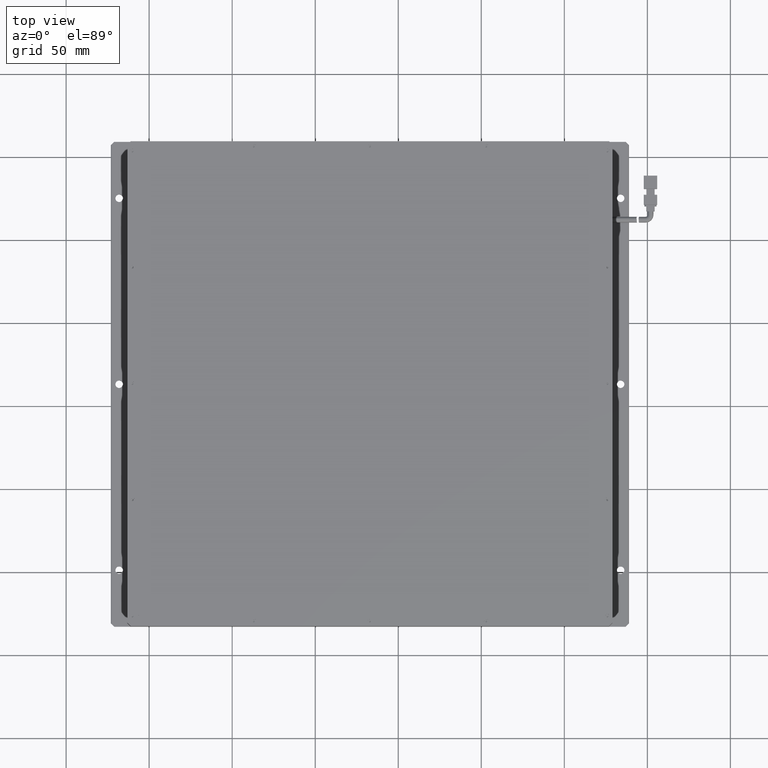
[diagram: clean part render]
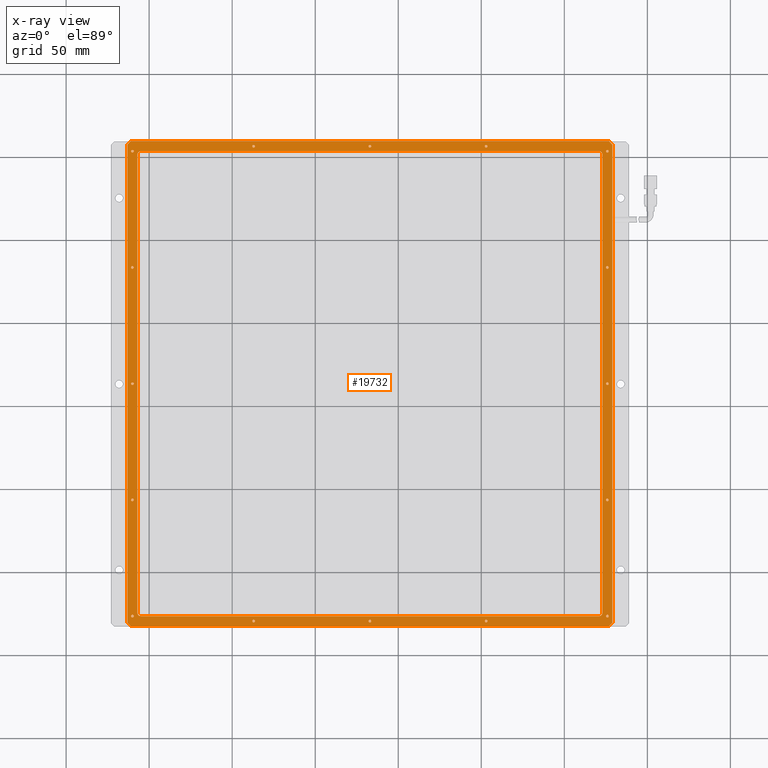
[diagram: x-ray — body ghosted, one internal face saturated and labeled with its STEP entity id]
A machine part, top view, then the same camera in x-ray: the body is ghosted and one INTERNAL B-rep face — a face not visible from any outside direction — is saturated and labeled: STEP entity #19732.
In plain terms, the highlighted planar face has unit normal (0, 0, 1).
Its self-contained STEP definition (entity closure, byte-faithful):
#38 = CIRCLE ( 'NONE', #19101, 0.8000000000000229200 ) ;
#142 = VERTEX_POINT ( 'NONE', #3890 ) ;
#190 = CARTESIAN_POINT ( 'NONE',  ( -110.8806771263418400, 83.26980456922672100, 8.499999999971805700 ) ) ;
#257 = CIRCLE ( 'NONE', #23396, 2.000000000000001800 ) ;
#259 = LINE ( 'NONE', #16151, #10939 ) ;
#296 = CARTESIAN_POINT ( 'NONE',  ( -113.0806771263418400, -130.7301954307733100, 8.499999999971805700 ) ) ;
#461 = CARTESIAN_POINT ( 'NONE',  ( 103.7193228736582300, 156.2698045692266600, 8.499999999971805700 ) ) ;
#508 = VERTEX_POINT ( 'NONE', #21748 ) ;
#614 = EDGE_CURVE ( 'NONE', #21358, #20732, #9364, .T. ) ;
#615 = LINE ( 'NONE', #1643, #16380 ) ;
#624 = CIRCLE ( 'NONE', #12786, 0.8000000000000229200 ) ;
#772 = VECTOR ( 'NONE', #18572, 999.9999999999998900 ) ;
#787 = EDGE_CURVE ( 'NONE', #20691, #19049, #4338, .T. ) ;
#879 = EDGE_CURVE ( 'NONE', #2624, #3625, #26768, .T. ) ;
#892 = CIRCLE ( 'NONE', #12843, 0.7999999999999951600 ) ;
#947 = DIRECTION ( 'NONE',  ( 0.0000000000000000000, 0.0000000000000000000, -1.000000000000000000 ) ) ;
#989 = CARTESIAN_POINT ( 'NONE',  ( 176.9193228736581900, 159.2698045692267500, 8.499999999971805700 ) ) ;
#1025 = DIRECTION ( 'NONE',  ( 0.0000000000000000000, 0.0000000000000000000, 1.000000000000000000 ) ) ;
#1059 = CARTESIAN_POINT ( 'NONE',  ( -109.2806771263418400, -56.73019543077334200, 8.499999999971805700 ) ) ;
#1090 = DIRECTION ( 'NONE',  ( 1.000000000000000000, 0.0000000000000000000, 0.0000000000000000000 ) ) ;
#1115 = CARTESIAN_POINT ( 'NONE',  ( 32.11932287365817700, 156.2698045692266600, 8.499999999971805700 ) ) ;
#1146 = EDGE_CURVE ( 'NONE', #22262, #21589, #11834, .T. ) ;
#1156 = DIRECTION ( 'NONE',  ( 0.0000000000000000000, 0.0000000000000000000, -1.000000000000000000 ) ) ;
#1252 = CARTESIAN_POINT ( 'NONE',  ( 32.91932287365817400, -129.7301954307733600, 8.499999999971805700 ) ) ;
#1259 = FACE_BOUND ( 'NONE', #19991, .T. ) ;
#1375 = ORIENTED_EDGE ( 'NONE', *, *, #7143, .T. ) ;
#1405 = CARTESIAN_POINT ( 'NONE',  ( 178.9193228736582500, -130.7301954307732200, 8.499999999971805700 ) ) ;
#1496 = CARTESIAN_POINT ( 'NONE',  ( 33.71932287365817200, -129.7301954307733600, 8.499999999971805700 ) ) ;
#1515 = EDGE_LOOP ( 'NONE', ( #5699, #10778 ) ) ;
#1524 = DIRECTION ( 'NONE',  ( 1.000000000000000000, 0.0000000000000000000, 0.0000000000000000000 ) ) ;
#1572 = ORIENTED_EDGE ( 'NONE', *, *, #13471, .T. ) ;
#1609 = DIRECTION ( 'NONE',  ( 1.000000000000000000, 0.0000000000000000000, -0.0000000000000000000 ) ) ;
#1643 = CARTESIAN_POINT ( 'NONE',  ( -113.0806771263418400, 153.2698045692266100, 8.499999999971805700 ) ) ;
#1668 = CIRCLE ( 'NONE', #5018, 0.7999999999999951600 ) ;
#1762 = DIRECTION ( 'NONE',  ( 0.0000000000000000000, 0.0000000000000000000, -1.000000000000000000 ) ) ;
#1777 = DIRECTION ( 'NONE',  ( 0.0000000000000000000, 0.0000000000000000000, -1.000000000000000000 ) ) ;
#1840 = VERTEX_POINT ( 'NONE', #18078 ) ;
#1885 = FACE_BOUND ( 'NONE', #9680, .T. ) ;
#2018 = EDGE_CURVE ( 'NONE', #15684, #16032, #21121, .T. ) ;
#2071 = CARTESIAN_POINT ( 'NONE',  ( 32.91932287365817400, 156.2698045692266600, 8.499999999971805700 ) ) ;
#2175 = CARTESIAN_POINT ( 'NONE',  ( -113.0806771263418400, 157.2698045692267200, 8.499999999971805700 ) ) ;
#2193 = VECTOR ( 'NONE', #2307, 1000.000000000000000 ) ;
#2228 = CIRCLE ( 'NONE', #23021, 2.000000000000001800 ) ;
#2307 = DIRECTION ( 'NONE',  ( 1.000000000000000000, 0.0000000000000000000, -0.0000000000000000000 ) ) ;
#2351 = ORIENTED_EDGE ( 'NONE', *, *, #9769, .T. ) ;
#2427 = AXIS2_PLACEMENT_3D ( 'NONE', #5192, #20190, #7348 ) ;
#2430 = ORIENTED_EDGE ( 'NONE', *, *, #2716, .T. ) ;
#2447 = CARTESIAN_POINT ( 'NONE',  ( -37.08067712634184700, 156.2698045692266600, 8.499999999971805700 ) ) ;
#2454 = EDGE_CURVE ( 'NONE', #18051, #6246, #25910, .T. ) ;
#2557 = FACE_BOUND ( 'NONE', #6393, .T. ) ;
#2624 = VERTEX_POINT ( 'NONE', #10455 ) ;
#2705 = EDGE_CURVE ( 'NONE', #22608, #1840, #6798, .T. ) ;
#2716 = EDGE_CURVE ( 'NONE', #4750, #4698, #17522, .T. ) ;
#3055 = EDGE_CURVE ( 'NONE', #13280, #15684, #7424, .T. ) ;
#3211 = ORIENTED_EDGE ( 'NONE', *, *, #22223, .T. ) ;
#3532 = CARTESIAN_POINT ( 'NONE',  ( 32.11932287365817700, -129.7301954307733600, 8.499999999971805700 ) ) ;
#3546 = ORIENTED_EDGE ( 'NONE', *, *, #11178, .T. ) ;
#3625 = VERTEX_POINT ( 'NONE', #25584 ) ;
#3876 = AXIS2_PLACEMENT_3D ( 'NONE', #4777, #19792, #6945 ) ;
#3890 = CARTESIAN_POINT ( 'NONE',  ( -37.88067712634184400, -129.7301954307733600, 8.499999999971805700 ) ) ;
#3896 = CARTESIAN_POINT ( 'NONE',  ( 102.9193228736582300, 156.2698045692266600, 8.499999999971805700 ) ) ;
#4243 = DIRECTION ( 'NONE',  ( 1.000000000000000000, 0.0000000000000000000, 0.0000000000000000000 ) ) ;
#4320 = DIRECTION ( 'NONE',  ( 0.0000000000000000000, 0.0000000000000000000, -1.000000000000000000 ) ) ;
#4338 = CIRCLE ( 'NONE', #14880, 0.8000000000000229200 ) ;
#4342 = DIRECTION ( 'NONE',  ( 0.0000000000000000000, 0.0000000000000000000, -1.000000000000000000 ) ) ;
#4402 = CARTESIAN_POINT ( 'NONE',  ( -105.0806771263419000, 153.2698045692266100, 8.499999999971805700 ) ) ;
#4580 = VERTEX_POINT ( 'NONE', #25642 ) ;
#4593 = EDGE_LOOP ( 'NONE', ( #18620, #2351 ) ) ;
#4613 = DIRECTION ( 'NONE',  ( 1.000000000000000000, 0.0000000000000000000, 0.0000000000000000000 ) ) ;
#4698 = VERTEX_POINT ( 'NONE', #18773 ) ;
#4717 = EDGE_CURVE ( 'NONE', #6183, #508, #26065, .T. ) ;
#4750 = VERTEX_POINT ( 'NONE', #14525 ) ;
#4776 = DIRECTION ( 'NONE',  ( 0.0000000000000000000, 0.0000000000000000000, -1.000000000000000000 ) ) ;
#4777 = CARTESIAN_POINT ( 'NONE',  ( 175.9193228736581900, 153.2698045692266600, 8.499999999971805700 ) ) ;
#4820 = ORIENTED_EDGE ( 'NONE', *, *, #13069, .T. ) ;
#5014 = DIRECTION ( 'NONE',  ( -1.000000000000000000, -0.0000000000000000000, 0.0000000000000000000 ) ) ;
#5018 = AXIS2_PLACEMENT_3D ( 'NONE', #17882, #17817, #17761 ) ;
#5192 = CARTESIAN_POINT ( 'NONE',  ( 175.9193228736581900, 13.26980456922666100, 8.499999999971805700 ) ) ;
#5238 = EDGE_LOOP ( 'NONE', ( #12973, #15239 ) ) ;
#5373 = CARTESIAN_POINT ( 'NONE',  ( 172.9193228736581300, -124.7301954307734100, 8.499999999971805700 ) ) ;
#5528 = CARTESIAN_POINT ( 'NONE',  ( -37.08067712634184700, -129.7301954307733600, 8.499999999971805700 ) ) ;
#5546 = EDGE_LOOP ( 'NONE', ( #3546, #11119 ) ) ;
#5559 = EDGE_CURVE ( 'NONE', #9301, #8310, #1668, .T. ) ;
#5601 = AXIS2_PLACEMENT_3D ( 'NONE', #10585, #25579, #12743 ) ;
#5632 = EDGE_CURVE ( 'NONE', #15379, #15036, #9678, .T. ) ;
#5645 = EDGE_LOOP ( 'NONE', ( #21277, #15731 ) ) ;
#5679 = CARTESIAN_POINT ( 'NONE',  ( 102.9193228736582300, -129.7301954307733600, 8.499999999971805700 ) ) ;
#5699 = ORIENTED_EDGE ( 'NONE', *, *, #19177, .T. ) ;
#5713 = CARTESIAN_POINT ( 'NONE',  ( -113.0806771263418400, -130.7301954307733100, 8.499999999971805700 ) ) ;
#5845 = ORIENTED_EDGE ( 'NONE', *, *, #879, .T. ) ;
#5914 = CARTESIAN_POINT ( 'NONE',  ( 175.9193228736581900, 153.2698045692266600, 8.499999999971805700 ) ) ;
#5964 = AXIS2_PLACEMENT_3D ( 'NONE', #8955, #23923, #11100 ) ;
#6052 = DIRECTION ( 'NONE',  ( 1.000000000000000000, 0.0000000000000000000, 0.0000000000000000000 ) ) ;
#6165 = EDGE_CURVE ( 'NONE', #17046, #16316, #615, .T. ) ;
#6169 = CARTESIAN_POINT ( 'NONE',  ( -107.0806771263419000, -132.7301954307733600, 8.499999999971805700 ) ) ;
#6183 = VERTEX_POINT ( 'NONE', #1115 ) ;
#6246 = VERTEX_POINT ( 'NONE', #296 ) ;
#6275 = EDGE_LOOP ( 'NONE', ( #22964, #6929 ) ) ;
#6351 = CARTESIAN_POINT ( 'NONE',  ( -105.0806771263419000, 151.2698045692266100, 8.499999999971805700 ) ) ;
#6374 = EDGE_CURVE ( 'NONE', #13327, #11977, #17748, .T. ) ;
#6393 = EDGE_LOOP ( 'NONE', ( #26659, #25378 ) ) ;
#6531 = ORIENTED_EDGE ( 'NONE', *, *, #6374, .T. ) ;
#6594 = EDGE_CURVE ( 'NONE', #22556, #27040, #9283, .T. ) ;
#6707 = EDGE_CURVE ( 'NONE', #17386, #11909, #259, .T. ) ;
#6756 = CARTESIAN_POINT ( 'NONE',  ( 176.9193228736579000, -132.7301954307733900, 8.499999999971805700 ) ) ;
#6798 = CIRCLE ( 'NONE', #9872, 0.8000000000000229200 ) ;
#6805 = CIRCLE ( 'NONE', #3876, 0.8000000000000229200 ) ;
#6925 = FACE_BOUND ( 'NONE', #1515, .T. ) ;
#6929 = ORIENTED_EDGE ( 'NONE', *, *, #15932, .T. ) ;
#6945 = DIRECTION ( 'NONE',  ( 1.000000000000000000, 0.0000000000000000000, 0.0000000000000000000 ) ) ;
#7037 = AXIS2_PLACEMENT_3D ( 'NONE', #2071, #17100, #4243 ) ;
#7143 = EDGE_CURVE ( 'NONE', #27040, #22556, #18651, .T. ) ;
#7156 = CIRCLE ( 'NONE', #11405, 0.8000000000000229200 ) ;
#7171 = VERTEX_POINT ( 'NONE', #461 ) ;
#7180 = EDGE_LOOP ( 'NONE', ( #14899, #19659 ) ) ;
#7190 = EDGE_LOOP ( 'NONE', ( #1375, #16223 ) ) ;
#7285 = EDGE_CURVE ( 'NONE', #16032, #12652, #19955, .T. ) ;
#7348 = DIRECTION ( 'NONE',  ( 1.000000000000000000, 0.0000000000000000000, 0.0000000000000000000 ) ) ;
#7424 = LINE ( 'NONE', #12698, #24511 ) ;
#7444 = DIRECTION ( 'NONE',  ( 0.0000000000000000000, -1.000000000000000000, -0.0000000000000000000 ) ) ;
#7462 = CARTESIAN_POINT ( 'NONE',  ( -110.8806771263418400, -56.73019543077334200, 8.499999999971805700 ) ) ;
#7469 = CIRCLE ( 'NONE', #10290, 2.000000000000001800 ) ;
#7532 = CARTESIAN_POINT ( 'NONE',  ( -113.0806771263418400, -132.7301954307733600, 8.499999999971805700 ) ) ;
#7598 = FACE_BOUND ( 'NONE', #25256, .T. ) ;
#7698 = DIRECTION ( 'NONE',  ( 1.000000000000000000, 0.0000000000000000000, 0.0000000000000000000 ) ) ;
#7843 = DIRECTION ( 'NONE',  ( 1.000000000000000000, 0.0000000000000000000, 0.0000000000000000000 ) ) ;
#7883 = VERTEX_POINT ( 'NONE', #23943 ) ;
#8069 = DIRECTION ( 'NONE',  ( 1.000000000000000000, 0.0000000000000000000, 0.0000000000000000000 ) ) ;
#8129 = DIRECTION ( 'NONE',  ( -0.0000000000000000000, -0.0000000000000000000, -1.000000000000000000 ) ) ;
#8226 = CARTESIAN_POINT ( 'NONE',  ( 175.9193228736581900, 13.26980456922666100, 8.499999999971805700 ) ) ;
#8247 = FACE_BOUND ( 'NONE', #5546, .T. ) ;
#8285 = EDGE_CURVE ( 'NONE', #13342, #17046, #7469, .T. ) ;
#8310 = VERTEX_POINT ( 'NONE', #12888 ) ;
#8431 = CIRCLE ( 'NONE', #11631, 0.7999999999999951600 ) ;
#8432 = ORIENTED_EDGE ( 'NONE', *, *, #14467, .T. ) ;
#8477 = DIRECTION ( 'NONE',  ( 1.000000000000000000, 0.0000000000000000000, 0.0000000000000000000 ) ) ;
#8505 = VECTOR ( 'NONE', #5014, 1000.000000000000000 ) ;
#8566 = AXIS2_PLACEMENT_3D ( 'NONE', #19100, #19375, #19538 ) ;
#8780 = DIRECTION ( 'NONE',  ( 0.0000000000000000000, 0.0000000000000000000, -1.000000000000000000 ) ) ;
#8955 = CARTESIAN_POINT ( 'NONE',  ( -110.0806771263418400, 13.26980456922666100, 8.499999999971805700 ) ) ;
#9262 = VERTEX_POINT ( 'NONE', #17171 ) ;
#9283 = CIRCLE ( 'NONE', #10406, 0.7999999999999951600 ) ;
#9291 = ORIENTED_EDGE ( 'NONE', *, *, #2018, .T. ) ;
#9301 = VERTEX_POINT ( 'NONE', #15175 ) ;
#9364 = CIRCLE ( 'NONE', #23110, 0.7999999999999951600 ) ;
#9400 = CARTESIAN_POINT ( 'NONE',  ( 102.1193228736582500, -129.7301954307733600, 8.499999999971805700 ) ) ;
#9472 = LINE ( 'NONE', #16825, #20889 ) ;
#9494 = VECTOR ( 'NONE', #7444, 1000.000000000000000 ) ;
#9561 = DIRECTION ( 'NONE',  ( 0.0000000000000000000, 0.0000000000000000000, -1.000000000000000000 ) ) ;
#9623 = CARTESIAN_POINT ( 'NONE',  ( -110.0806771263418400, -56.73019543077334200, 8.499999999971805700 ) ) ;
#9678 = CIRCLE ( 'NONE', #16531, 0.7999999999999951600 ) ;
#9680 = EDGE_LOOP ( 'NONE', ( #5845, #1572 ) ) ;
#9691 = DIRECTION ( 'NONE',  ( 1.000000000000000000, 0.0000000000000000000, 0.0000000000000000000 ) ) ;
#9769 = EDGE_CURVE ( 'NONE', #1840, #22608, #10359, .T. ) ;
#9872 = AXIS2_PLACEMENT_3D ( 'NONE', #16795, #16701, #16601 ) ;
#9884 = ORIENTED_EDGE ( 'NONE', *, *, #19380, .T. ) ;
#10111 = EDGE_LOOP ( 'NONE', ( #24897, #11647 ) ) ;
#10130 = EDGE_CURVE ( 'NONE', #21589, #22262, #13685, .T. ) ;
#10151 = CIRCLE ( 'NONE', #18807, 0.7999999999999951600 ) ;
#10270 = DIRECTION ( 'NONE',  ( -0.0000000000000000000, -0.0000000000000000000, -1.000000000000000000 ) ) ;
#10276 = DIRECTION ( 'NONE',  ( 1.000000000000000000, 0.0000000000000000000, 0.0000000000000000000 ) ) ;
#10290 = AXIS2_PLACEMENT_3D ( 'NONE', #6351, #21335, #8477 ) ;
#10315 = ORIENTED_EDGE ( 'NONE', *, *, #15923, .T. ) ;
#10359 = CIRCLE ( 'NONE', #10907, 0.8000000000000229200 ) ;
#10373 = DIRECTION ( 'NONE',  ( 1.000000000000000000, 0.0000000000000000000, 0.0000000000000000000 ) ) ;
#10406 = AXIS2_PLACEMENT_3D ( 'NONE', #21784, #21536, #21237 ) ;
#10455 = CARTESIAN_POINT ( 'NONE',  ( 176.7193228736582000, -126.7301954307733500, 8.499999999971805700 ) ) ;
#10585 = CARTESIAN_POINT ( 'NONE',  ( -37.08067712634184700, -129.7301954307733600, 8.499999999971805700 ) ) ;
#10642 = ORIENTED_EDGE ( 'NONE', *, *, #19524, .T. ) ;
#10751 = DIRECTION ( 'NONE',  ( 0.0000000000000000000, 0.0000000000000000000, -1.000000000000000000 ) ) ;
#10778 = ORIENTED_EDGE ( 'NONE', *, *, #614, .T. ) ;
#10825 = VERTEX_POINT ( 'NONE', #17996 ) ;
#10907 = AXIS2_PLACEMENT_3D ( 'NONE', #14601, #1762, #16785 ) ;
#10916 = CARTESIAN_POINT ( 'NONE',  ( 172.9193228736581300, 151.2698045692266100, 8.499999999971805700 ) ) ;
#10939 = VECTOR ( 'NONE', #15999, 1000.000000000000000 ) ;
#10970 = LINE ( 'NONE', #20154, #22391 ) ;
#11100 = DIRECTION ( 'NONE',  ( 1.000000000000000000, 0.0000000000000000000, 0.0000000000000000000 ) ) ;
#11115 = DIRECTION ( 'NONE',  ( 0.0000000000000000000, 0.0000000000000000000, -1.000000000000000000 ) ) ;
#11119 = ORIENTED_EDGE ( 'NONE', *, *, #4717, .T. ) ;
#11169 = EDGE_CURVE ( 'NONE', #142, #10825, #27683, .T. ) ;
#11178 = EDGE_CURVE ( 'NONE', #508, #6183, #26986, .T. ) ;
#11300 = AXIS2_PLACEMENT_3D ( 'NONE', #16337, #16241, #16057 ) ;
#11358 = CARTESIAN_POINT ( 'NONE',  ( -110.0806771263418400, 83.26980456922672100, 8.499999999971805700 ) ) ;
#11405 = AXIS2_PLACEMENT_3D ( 'NONE', #5914, #20909, #8069 ) ;
#11603 = DIRECTION ( 'NONE',  ( 0.0000000000000000000, 0.0000000000000000000, -1.000000000000000000 ) ) ;
#11629 = EDGE_CURVE ( 'NONE', #19701, #15472, #17914, .T. ) ;
#11631 = AXIS2_PLACEMENT_3D ( 'NONE', #27182, #14355, #1524 ) ;
#11647 = ORIENTED_EDGE ( 'NONE', *, *, #25373, .T. ) ;
#11834 = CIRCLE ( 'NONE', #23811, 0.7999999999999951600 ) ;
#11909 = VERTEX_POINT ( 'NONE', #19672 ) ;
#11977 = VERTEX_POINT ( 'NONE', #23818 ) ;
#12288 = EDGE_CURVE ( 'NONE', #7171, #13541, #13103, .T. ) ;
#12602 = FACE_BOUND ( 'NONE', #22236, .T. ) ;
#12652 = VERTEX_POINT ( 'NONE', #25668 ) ;
#12667 = DIRECTION ( 'NONE',  ( 0.0000000000000000000, -1.000000000000000000, -0.0000000000000000000 ) ) ;
#12698 = CARTESIAN_POINT ( 'NONE',  ( 172.9193228736581300, -132.7301954307733600, 8.499999999971805700 ) ) ;
#12714 = CARTESIAN_POINT ( 'NONE',  ( -37.88067712634184400, 156.2698045692266600, 8.499999999971805700 ) ) ;
#12743 = DIRECTION ( 'NONE',  ( 1.000000000000000000, 0.0000000000000000000, 0.0000000000000000000 ) ) ;
#12759 = EDGE_CURVE ( 'NONE', #17682, #17386, #21216, .T. ) ;
#12786 = AXIS2_PLACEMENT_3D ( 'NONE', #8226, #23198, #10373 ) ;
#12843 = AXIS2_PLACEMENT_3D ( 'NONE', #17175, #4320, #19348 ) ;
#12888 = CARTESIAN_POINT ( 'NONE',  ( -109.2806771263418400, 153.2698045692266600, 8.499999999971805700 ) ) ;
#12973 = ORIENTED_EDGE ( 'NONE', *, *, #23689, .T. ) ;
#13061 = CARTESIAN_POINT ( 'NONE',  ( -109.2806771263418400, 13.26980456922666100, 8.499999999971805700 ) ) ;
#13064 = AXIS2_PLACEMENT_3D ( 'NONE', #15851, #15816, #15738 ) ;
#13069 = EDGE_CURVE ( 'NONE', #6246, #17313, #24180, .T. ) ;
#13103 = CIRCLE ( 'NONE', #26803, 0.7999999999999951600 ) ;
#13280 = VERTEX_POINT ( 'NONE', #10916 ) ;
#13281 = FACE_BOUND ( 'NONE', #10111, .T. ) ;
#13299 = CARTESIAN_POINT ( 'NONE',  ( 170.9193228736581300, -126.7301954307734100, 8.499999999971805700 ) ) ;
#13327 = VERTEX_POINT ( 'NONE', #190 ) ;
#13342 = VERTEX_POINT ( 'NONE', #25995 ) ;
#13409 = DIRECTION ( 'NONE',  ( 1.000000000000000000, 0.0000000000000000000, 0.0000000000000000000 ) ) ;
#13471 = EDGE_CURVE ( 'NONE', #3625, #2624, #38, .T. ) ;
#13492 = ORIENTED_EDGE ( 'NONE', *, *, #16834, .T. ) ;
#13528 = CARTESIAN_POINT ( 'NONE',  ( -113.0806771263418400, -126.7301954307734100, 8.499999999971805700 ) ) ;
#13541 = VERTEX_POINT ( 'NONE', #14038 ) ;
#13564 = EDGE_CURVE ( 'NONE', #15472, #19701, #14092, .T. ) ;
#13576 = VERTEX_POINT ( 'NONE', #16389 ) ;
#13685 = CIRCLE ( 'NONE', #22785, 0.7999999999999951600 ) ;
#13736 = PLANE ( 'NONE',  #20024 ) ;
#13747 = CARTESIAN_POINT ( 'NONE',  ( 175.9193228736581900, -126.7301954307733500, 8.499999999971805700 ) ) ;
#13774 = CARTESIAN_POINT ( 'NONE',  ( 175.1193228736581800, -56.73019543077334200, 8.499999999971805700 ) ) ;
#13819 = ORIENTED_EDGE ( 'NONE', *, *, #3055, .T. ) ;
#13823 = CARTESIAN_POINT ( 'NONE',  ( -113.0806771263418400, -132.7301954307733600, 8.499999999971805700 ) ) ;
#13977 = FACE_BOUND ( 'NONE', #5238, .T. ) ;
#14038 = CARTESIAN_POINT ( 'NONE',  ( 102.1193228736582500, 156.2698045692266600, 8.499999999971805700 ) ) ;
#14092 = CIRCLE ( 'NONE', #17123, 0.7999999999999951600 ) ;
#14101 = CARTESIAN_POINT ( 'NONE',  ( -36.28067712634185000, 156.2698045692266600, 8.499999999971805700 ) ) ;
#14257 = ORIENTED_EDGE ( 'NONE', *, *, #18834, .T. ) ;
#14355 = DIRECTION ( 'NONE',  ( 0.0000000000000000000, 0.0000000000000000000, -1.000000000000000000 ) ) ;
#14467 = EDGE_CURVE ( 'NONE', #19049, #20691, #22731, .T. ) ;
#14525 = CARTESIAN_POINT ( 'NONE',  ( -110.8806771263418400, -126.7301954307733500, 8.499999999971805700 ) ) ;
#14582 = ORIENTED_EDGE ( 'NONE', *, *, #26471, .T. ) ;
#14587 = EDGE_CURVE ( 'NONE', #11909, #18361, #10970, .T. ) ;
#14588 = EDGE_LOOP ( 'NONE', ( #23932, #6531 ) ) ;
#14601 = CARTESIAN_POINT ( 'NONE',  ( 175.9193228736581900, 83.26980456922672100, 8.499999999971805700 ) ) ;
#14621 = CARTESIAN_POINT ( 'NONE',  ( 102.9193228736582300, -129.7301954307733600, 8.499999999971805700 ) ) ;
#14649 = FACE_BOUND ( 'NONE', #6275, .T. ) ;
#14801 = EDGE_CURVE ( 'NONE', #16316, #13280, #257, .T. ) ;
#14880 = AXIS2_PLACEMENT_3D ( 'NONE', #17700, #15990, #16022 ) ;
#14899 = ORIENTED_EDGE ( 'NONE', *, *, #13564, .T. ) ;
#14968 = CIRCLE ( 'NONE', #2427, 0.8000000000000229200 ) ;
#15036 = VERTEX_POINT ( 'NONE', #13061 ) ;
#15175 = CARTESIAN_POINT ( 'NONE',  ( -110.8806771263418400, 153.2698045692266600, 8.499999999971805700 ) ) ;
#15239 = ORIENTED_EDGE ( 'NONE', *, *, #11169, .T. ) ;
#15379 = VERTEX_POINT ( 'NONE', #17128 ) ;
#15451 = DIRECTION ( 'NONE',  ( 1.000000000000000000, 0.0000000000000000000, 0.0000000000000000000 ) ) ;
#15472 = VERTEX_POINT ( 'NONE', #19543 ) ;
#15614 = EDGE_CURVE ( 'NONE', #4580, #9262, #14968, .T. ) ;
#15625 = ORIENTED_EDGE ( 'NONE', *, *, #6165, .T. ) ;
#15684 = VERTEX_POINT ( 'NONE', #5373 ) ;
#15694 = LINE ( 'NONE', #6169, #21353 ) ;
#15731 = ORIENTED_EDGE ( 'NONE', *, *, #20584, .T. ) ;
#15738 = DIRECTION ( 'NONE',  ( 1.000000000000000000, 0.0000000000000000000, 0.0000000000000000000 ) ) ;
#15764 = AXIS2_PLACEMENT_3D ( 'NONE', #23585, #10751, #25741 ) ;
#15816 = DIRECTION ( 'NONE',  ( -0.0000000000000000000, 0.0000000000000000000, -1.000000000000000000 ) ) ;
#15817 = DIRECTION ( 'NONE',  ( 1.000000000000000000, 0.0000000000000000000, 0.0000000000000000000 ) ) ;
#15847 = DIRECTION ( 'NONE',  ( 0.0000000000000000000, 0.0000000000000000000, -1.000000000000000000 ) ) ;
#15851 = CARTESIAN_POINT ( 'NONE',  ( 170.9193228736581300, -124.7301954307734100, 8.499999999971805700 ) ) ;
#15869 = ORIENTED_EDGE ( 'NONE', *, *, #12759, .T. ) ;
#15879 = DIRECTION ( 'NONE',  ( 0.0000000000000000000, 0.0000000000000000000, -1.000000000000000000 ) ) ;
#15923 = EDGE_CURVE ( 'NONE', #4698, #4750, #892, .T. ) ;
#15927 = EDGE_LOOP ( 'NONE', ( #15625, #19119, #13819, #9291, #25278, #9884, #3211, #19749 ) ) ;
#15932 = EDGE_CURVE ( 'NONE', #13541, #7171, #17297, .T. ) ;
#15937 = DIRECTION ( 'NONE',  ( 1.000000000000000000, 0.0000000000000000000, 0.0000000000000000000 ) ) ;
#15969 = CARTESIAN_POINT ( 'NONE',  ( 32.91932287365817400, 156.2698045692266600, 8.499999999971805700 ) ) ;
#15990 = DIRECTION ( 'NONE',  ( 0.0000000000000000000, 0.0000000000000000000, -1.000000000000000000 ) ) ;
#15999 = DIRECTION ( 'NONE',  ( -0.0000000000000000000, 1.000000000000000000, 0.0000000000000000000 ) ) ;
#16015 = DIRECTION ( 'NONE',  ( 1.000000000000000000, 0.0000000000000000000, -0.0000000000000000000 ) ) ;
#16022 = DIRECTION ( 'NONE',  ( 1.000000000000000000, 0.0000000000000000000, 0.0000000000000000000 ) ) ;
#16032 = VERTEX_POINT ( 'NONE', #13299 ) ;
#16057 = DIRECTION ( 'NONE',  ( 1.000000000000000000, 0.0000000000000000000, 0.0000000000000000000 ) ) ;
#16151 = CARTESIAN_POINT ( 'NONE',  ( 178.9193228736581900, -132.7301954307733600, 8.499999999971805700 ) ) ;
#16223 = ORIENTED_EDGE ( 'NONE', *, *, #6594, .T. ) ;
#16241 = DIRECTION ( 'NONE',  ( 0.0000000000000000000, 0.0000000000000000000, -1.000000000000000000 ) ) ;
#16289 = VERTEX_POINT ( 'NONE', #18521 ) ;
#16316 = VERTEX_POINT ( 'NONE', #16480 ) ;
#16337 = CARTESIAN_POINT ( 'NONE',  ( -110.0806771263418400, -126.7301954307733500, 8.499999999971805700 ) ) ;
#16380 = VECTOR ( 'NONE', #1609, 1000.000000000000000 ) ;
#16389 = CARTESIAN_POINT ( 'NONE',  ( 175.1193228736581800, 153.2698045692266600, 8.499999999971805700 ) ) ;
#16429 = AXIS2_PLACEMENT_3D ( 'NONE', #24434, #11603, #26580 ) ;
#16480 = CARTESIAN_POINT ( 'NONE',  ( 170.9193228736581300, 153.2698045692266100, 8.499999999971805700 ) ) ;
#16531 = AXIS2_PLACEMENT_3D ( 'NONE', #24409, #15847, #15817 ) ;
#16601 = DIRECTION ( 'NONE',  ( 1.000000000000000000, 0.0000000000000000000, 0.0000000000000000000 ) ) ;
#16701 = DIRECTION ( 'NONE',  ( 0.0000000000000000000, 0.0000000000000000000, -1.000000000000000000 ) ) ;
#16785 = DIRECTION ( 'NONE',  ( 1.000000000000000000, 0.0000000000000000000, 0.0000000000000000000 ) ) ;
#16795 = CARTESIAN_POINT ( 'NONE',  ( 175.9193228736581900, 83.26980456922672100, 8.499999999971805700 ) ) ;
#16798 = DIRECTION ( 'NONE',  ( 1.000000000000000000, 0.0000000000000000000, 0.0000000000000000000 ) ) ;
#16825 = CARTESIAN_POINT ( 'NONE',  ( -113.0806771263418400, 159.2698045692266900, 8.499999999971805700 ) ) ;
#16834 = EDGE_CURVE ( 'NONE', #8310, #9301, #8431, .T. ) ;
#16850 = CIRCLE ( 'NONE', #19564, 0.7999999999999951600 ) ;
#17003 = ORIENTED_EDGE ( 'NONE', *, *, #5632, .T. ) ;
#17046 = VERTEX_POINT ( 'NONE', #4402 ) ;
#17100 = DIRECTION ( 'NONE',  ( 0.0000000000000000000, 0.0000000000000000000, -1.000000000000000000 ) ) ;
#17123 = AXIS2_PLACEMENT_3D ( 'NONE', #5679, #20679, #7843 ) ;
#17128 = CARTESIAN_POINT ( 'NONE',  ( -110.8806771263418400, 13.26980456922666100, 8.499999999971805700 ) ) ;
#17171 = CARTESIAN_POINT ( 'NONE',  ( 175.1193228736581800, 13.26980456922666100, 8.499999999971805700 ) ) ;
#17175 = CARTESIAN_POINT ( 'NONE',  ( -110.0806771263418400, -126.7301954307733500, 8.499999999971805700 ) ) ;
#17297 = CIRCLE ( 'NONE', #15764, 0.7999999999999951600 ) ;
#17313 = VERTEX_POINT ( 'NONE', #22462 ) ;
#17325 = CARTESIAN_POINT ( 'NONE',  ( -113.0806771263418400, -132.7301954307733600, 8.499999999971805700 ) ) ;
#17386 = VERTEX_POINT ( 'NONE', #1405 ) ;
#17454 = DIRECTION ( 'NONE',  ( 0.0000000000000000000, 0.0000000000000000000, -1.000000000000000000 ) ) ;
#17522 = CIRCLE ( 'NONE', #11300, 0.7999999999999951600 ) ;
#17614 = ORIENTED_EDGE ( 'NONE', *, *, #2454, .T. ) ;
#17623 = CARTESIAN_POINT ( 'NONE',  ( 175.9193228736581900, -56.73019543077334200, 8.499999999971805700 ) ) ;
#17657 = FACE_BOUND ( 'NONE', #15927, .T. ) ;
#17682 = VERTEX_POINT ( 'NONE', #24190 ) ;
#17700 = CARTESIAN_POINT ( 'NONE',  ( 175.9193228736581900, -56.73019543077334200, 8.499999999971805700 ) ) ;
#17717 = AXIS2_PLACEMENT_3D ( 'NONE', #15969, #15879, #15451 ) ;
#17748 = CIRCLE ( 'NONE', #18713, 0.7999999999999951600 ) ;
#17761 = DIRECTION ( 'NONE',  ( 1.000000000000000000, 0.0000000000000000000, 0.0000000000000000000 ) ) ;
#17817 = DIRECTION ( 'NONE',  ( 0.0000000000000000000, 0.0000000000000000000, -1.000000000000000000 ) ) ;
#17882 = CARTESIAN_POINT ( 'NONE',  ( -110.0806771263418400, 153.2698045692266600, 8.499999999971805700 ) ) ;
#17914 = CIRCLE ( 'NONE', #24067, 0.7999999999999951600 ) ;
#17996 = CARTESIAN_POINT ( 'NONE',  ( -36.28067712634185000, -129.7301954307733600, 8.499999999971805700 ) ) ;
#18039 = VERTEX_POINT ( 'NONE', #23442 ) ;
#18051 = VERTEX_POINT ( 'NONE', #2175 ) ;
#18078 = CARTESIAN_POINT ( 'NONE',  ( 175.1193228736581800, 83.26980456922672100, 8.499999999971805700 ) ) ;
#18341 = FACE_BOUND ( 'NONE', #14588, .T. ) ;
#18361 = VERTEX_POINT ( 'NONE', #989 ) ;
#18419 = CIRCLE ( 'NONE', #5964, 0.7999999999999951600 ) ;
#18521 = CARTESIAN_POINT ( 'NONE',  ( -107.0806771263419000, -124.7301954307734100, 8.499999999971805700 ) ) ;
#18572 = DIRECTION ( 'NONE',  ( 0.7071067811865376900, -0.7071067811865574500, 0.0000000000000000000 ) ) ;
#18620 = ORIENTED_EDGE ( 'NONE', *, *, #2705, .T. ) ;
#18651 = CIRCLE ( 'NONE', #24614, 0.7999999999999951600 ) ;
#18713 = AXIS2_PLACEMENT_3D ( 'NONE', #11358, #11115, #10276 ) ;
#18773 = CARTESIAN_POINT ( 'NONE',  ( -109.2806771263418400, -126.7301954307733500, 8.499999999971805700 ) ) ;
#18807 = AXIS2_PLACEMENT_3D ( 'NONE', #21632, #8780, #23764 ) ;
#18834 = EDGE_CURVE ( 'NONE', #15036, #15379, #18419, .T. ) ;
#18906 = DIRECTION ( 'NONE',  ( 0.0000000000000000000, 0.0000000000000000000, -1.000000000000000000 ) ) ;
#19024 = FACE_BOUND ( 'NONE', #4593, .T. ) ;
#19049 = VERTEX_POINT ( 'NONE', #19592 ) ;
#19100 = CARTESIAN_POINT ( 'NONE',  ( 175.9193228736581900, -126.7301954307733500, 8.499999999971805700 ) ) ;
#19101 = AXIS2_PLACEMENT_3D ( 'NONE', #13747, #947, #15937 ) ;
#19119 = ORIENTED_EDGE ( 'NONE', *, *, #14801, .T. ) ;
#19177 = EDGE_CURVE ( 'NONE', #20732, #21358, #21676, .T. ) ;
#19258 = EDGE_LOOP ( 'NONE', ( #13492, #25640 ) ) ;
#19348 = DIRECTION ( 'NONE',  ( 1.000000000000000000, 0.0000000000000000000, 0.0000000000000000000 ) ) ;
#19375 = DIRECTION ( 'NONE',  ( 0.0000000000000000000, 0.0000000000000000000, -1.000000000000000000 ) ) ;
#19380 = EDGE_CURVE ( 'NONE', #12652, #16289, #2228, .T. ) ;
#19524 = EDGE_CURVE ( 'NONE', #17313, #17682, #24322, .T. ) ;
#19538 = DIRECTION ( 'NONE',  ( 1.000000000000000000, 0.0000000000000000000, 0.0000000000000000000 ) ) ;
#19543 = CARTESIAN_POINT ( 'NONE',  ( 103.7193228736582300, -129.7301954307733600, 8.499999999971805700 ) ) ;
#19564 = AXIS2_PLACEMENT_3D ( 'NONE', #5528, #20524, #7698 ) ;
#19592 = CARTESIAN_POINT ( 'NONE',  ( 176.7193228736582000, -56.73019543077334200, 8.499999999971805700 ) ) ;
#19659 = ORIENTED_EDGE ( 'NONE', *, *, #11629, .T. ) ;
#19672 = CARTESIAN_POINT ( 'NONE',  ( 178.9193228736582500, 157.2698045692267200, 8.499999999971805700 ) ) ;
#19701 = VERTEX_POINT ( 'NONE', #9400 ) ;
#19732 = ADVANCED_FACE ( 'NONE', ( #25349, #20998, #13977, #14649, #8247, #2557, #24689, #19024, #13281, #7598, #1885, #23964, #18341, #12602, #6925, #1259, #23319, #17657 ), #13736, .T. ) ;
#19749 = ORIENTED_EDGE ( 'NONE', *, *, #8285, .T. ) ;
#19791 = DIRECTION ( 'NONE',  ( 1.000000000000000000, 0.0000000000000000000, 0.0000000000000000000 ) ) ;
#19792 = DIRECTION ( 'NONE',  ( 0.0000000000000000000, 0.0000000000000000000, -1.000000000000000000 ) ) ;
#19955 = LINE ( 'NONE', #13528, #8505 ) ;
#19991 = EDGE_LOOP ( 'NONE', ( #10315, #2430 ) ) ;
#20024 = AXIS2_PLACEMENT_3D ( 'NONE', #13823, #1025, #16015 ) ;
#20154 = CARTESIAN_POINT ( 'NONE',  ( 178.9193228736581900, 157.2698045692267200, 8.499999999971805700 ) ) ;
#20190 = DIRECTION ( 'NONE',  ( 0.0000000000000000000, 0.0000000000000000000, -1.000000000000000000 ) ) ;
#20504 = EDGE_CURVE ( 'NONE', #11977, #13327, #10151, .T. ) ;
#20524 = DIRECTION ( 'NONE',  ( 0.0000000000000000000, 0.0000000000000000000, -1.000000000000000000 ) ) ;
#20563 = VECTOR ( 'NONE', #23852, 1000.000000000000100 ) ;
#20584 = EDGE_CURVE ( 'NONE', #13576, #7883, #6805, .T. ) ;
#20679 = DIRECTION ( 'NONE',  ( 0.0000000000000000000, 0.0000000000000000000, -1.000000000000000000 ) ) ;
#20691 = VERTEX_POINT ( 'NONE', #13774 ) ;
#20732 = VERTEX_POINT ( 'NONE', #1059 ) ;
#20889 = VECTOR ( 'NONE', #23228, 1000.000000000000000 ) ;
#20909 = DIRECTION ( 'NONE',  ( 0.0000000000000000000, 0.0000000000000000000, -1.000000000000000000 ) ) ;
#20964 = CARTESIAN_POINT ( 'NONE',  ( 170.9193228736581300, 151.2698045692266100, 8.499999999971805700 ) ) ;
#20998 = FACE_BOUND ( 'NONE', #7190, .T. ) ;
#21121 = CIRCLE ( 'NONE', #13064, 2.000000000000001800 ) ;
#21216 = LINE ( 'NONE', #6756, #20563 ) ;
#21237 = DIRECTION ( 'NONE',  ( 1.000000000000000000, 0.0000000000000000000, 0.0000000000000000000 ) ) ;
#21271 = VECTOR ( 'NONE', #23886, 999.9999999999998900 ) ;
#21277 = ORIENTED_EDGE ( 'NONE', *, *, #26428, .T. ) ;
#21335 = DIRECTION ( 'NONE',  ( 0.0000000000000000000, -0.0000000000000000000, -1.000000000000000000 ) ) ;
#21353 = VECTOR ( 'NONE', #23291, 1000.000000000000000 ) ;
#21358 = VERTEX_POINT ( 'NONE', #7462 ) ;
#21536 = DIRECTION ( 'NONE',  ( 0.0000000000000000000, 0.0000000000000000000, -1.000000000000000000 ) ) ;
#21587 = AXIS2_PLACEMENT_3D ( 'NONE', #17623, #4776, #19791 ) ;
#21589 = VERTEX_POINT ( 'NONE', #14101 ) ;
#21632 = CARTESIAN_POINT ( 'NONE',  ( -110.0806771263418400, 83.26980456922672100, 8.499999999971805700 ) ) ;
#21676 = CIRCLE ( 'NONE', #16429, 0.7999999999999951600 ) ;
#21748 = CARTESIAN_POINT ( 'NONE',  ( 33.71932287365817200, 156.2698045692266600, 8.499999999971805700 ) ) ;
#21784 = CARTESIAN_POINT ( 'NONE',  ( 32.91932287365817400, -129.7301954307733600, 8.499999999971805700 ) ) ;
#22223 = EDGE_CURVE ( 'NONE', #16289, #13342, #15694, .T. ) ;
#22236 = EDGE_LOOP ( 'NONE', ( #14257, #17003 ) ) ;
#22262 = VERTEX_POINT ( 'NONE', #12714 ) ;
#22391 = VECTOR ( 'NONE', #24351, 1000.000000000000000 ) ;
#22462 = CARTESIAN_POINT ( 'NONE',  ( -111.0806771263418400, -132.7301954307733600, 8.499999999971805700 ) ) ;
#22556 = VERTEX_POINT ( 'NONE', #3532 ) ;
#22565 = ORIENTED_EDGE ( 'NONE', *, *, #14587, .T. ) ;
#22608 = VERTEX_POINT ( 'NONE', #24987 ) ;
#22731 = CIRCLE ( 'NONE', #21587, 0.8000000000000229200 ) ;
#22785 = AXIS2_PLACEMENT_3D ( 'NONE', #2447, #17454, #4613 ) ;
#22895 = EDGE_CURVE ( 'NONE', #18039, #18051, #26968, .T. ) ;
#22964 = ORIENTED_EDGE ( 'NONE', *, *, #12288, .T. ) ;
#23021 = AXIS2_PLACEMENT_3D ( 'NONE', #23108, #10270, #25263 ) ;
#23108 = CARTESIAN_POINT ( 'NONE',  ( -105.0806771263419000, -124.7301954307734100, 8.499999999971805700 ) ) ;
#23110 = AXIS2_PLACEMENT_3D ( 'NONE', #9623, #9561, #9691 ) ;
#23111 = DIRECTION ( 'NONE',  ( 1.000000000000000000, 0.0000000000000000000, 0.0000000000000000000 ) ) ;
#23198 = DIRECTION ( 'NONE',  ( 0.0000000000000000000, 0.0000000000000000000, -1.000000000000000000 ) ) ;
#23228 = DIRECTION ( 'NONE',  ( -1.000000000000000000, -0.0000000000000000000, 0.0000000000000000000 ) ) ;
#23263 = ORIENTED_EDGE ( 'NONE', *, *, #22895, .T. ) ;
#23291 = DIRECTION ( 'NONE',  ( -0.0000000000000000000, 1.000000000000000000, 0.0000000000000000000 ) ) ;
#23319 = FACE_OUTER_BOUND ( 'NONE', #24993, .T. ) ;
#23396 = AXIS2_PLACEMENT_3D ( 'NONE', #20964, #8129, #23111 ) ;
#23442 = CARTESIAN_POINT ( 'NONE',  ( -111.0806771263418400, 159.2698045692267500, 8.499999999971805700 ) ) ;
#23585 = CARTESIAN_POINT ( 'NONE',  ( 102.9193228736582300, 156.2698045692266600, 8.499999999971805700 ) ) ;
#23689 = EDGE_CURVE ( 'NONE', #10825, #142, #16850, .T. ) ;
#23764 = DIRECTION ( 'NONE',  ( 1.000000000000000000, 0.0000000000000000000, 0.0000000000000000000 ) ) ;
#23798 = CARTESIAN_POINT ( 'NONE',  ( -111.0806771263418300, 159.2698045692267500, 8.499999999971805700 ) ) ;
#23811 = AXIS2_PLACEMENT_3D ( 'NONE', #25217, #4342, #13409 ) ;
#23818 = CARTESIAN_POINT ( 'NONE',  ( -109.2806771263418400, 83.26980456922672100, 8.499999999971805700 ) ) ;
#23852 = DIRECTION ( 'NONE',  ( 0.7071067811865650000, 0.7071067811865300300, 0.0000000000000000000 ) ) ;
#23886 = DIRECTION ( 'NONE',  ( -0.7071067811865486800, -0.7071067811865464600, 0.0000000000000000000 ) ) ;
#23923 = DIRECTION ( 'NONE',  ( 0.0000000000000000000, 0.0000000000000000000, -1.000000000000000000 ) ) ;
#23932 = ORIENTED_EDGE ( 'NONE', *, *, #20504, .T. ) ;
#23943 = CARTESIAN_POINT ( 'NONE',  ( 176.7193228736582000, 153.2698045692266600, 8.499999999971805700 ) ) ;
#23964 = FACE_BOUND ( 'NONE', #19258, .T. ) ;
#24067 = AXIS2_PLACEMENT_3D ( 'NONE', #14621, #1777, #16798 ) ;
#24180 = LINE ( 'NONE', #5713, #772 ) ;
#24190 = CARTESIAN_POINT ( 'NONE',  ( 176.9193228736579000, -132.7301954307733900, 8.499999999971805700 ) ) ;
#24264 = ORIENTED_EDGE ( 'NONE', *, *, #6707, .T. ) ;
#24322 = LINE ( 'NONE', #17325, #2193 ) ;
#24351 = DIRECTION ( 'NONE',  ( -0.7071067811865573400, 0.7071067811865378000, 0.0000000000000000000 ) ) ;
#24409 = CARTESIAN_POINT ( 'NONE',  ( -110.0806771263418400, 13.26980456922666100, 8.499999999971805700 ) ) ;
#24434 = CARTESIAN_POINT ( 'NONE',  ( -110.0806771263418400, -56.73019543077334200, 8.499999999971805700 ) ) ;
#24511 = VECTOR ( 'NONE', #12667, 1000.000000000000000 ) ;
#24614 = AXIS2_PLACEMENT_3D ( 'NONE', #1252, #1156, #1090 ) ;
#24689 = FACE_BOUND ( 'NONE', #5645, .T. ) ;
#24897 = ORIENTED_EDGE ( 'NONE', *, *, #15614, .T. ) ;
#24987 = CARTESIAN_POINT ( 'NONE',  ( 176.7193228736582000, 83.26980456922672100, 8.499999999971805700 ) ) ;
#24993 = EDGE_LOOP ( 'NONE', ( #17614, #4820, #10642, #15869, #24264, #22565, #14582, #23263 ) ) ;
#25217 = CARTESIAN_POINT ( 'NONE',  ( -37.08067712634184700, 156.2698045692266600, 8.499999999971805700 ) ) ;
#25256 = EDGE_LOOP ( 'NONE', ( #8432, #25968 ) ) ;
#25263 = DIRECTION ( 'NONE',  ( 1.000000000000000000, 0.0000000000000000000, 0.0000000000000000000 ) ) ;
#25278 = ORIENTED_EDGE ( 'NONE', *, *, #7285, .T. ) ;
#25349 = FACE_BOUND ( 'NONE', #7180, .T. ) ;
#25373 = EDGE_CURVE ( 'NONE', #9262, #4580, #624, .T. ) ;
#25378 = ORIENTED_EDGE ( 'NONE', *, *, #1146, .T. ) ;
#25579 = DIRECTION ( 'NONE',  ( 0.0000000000000000000, 0.0000000000000000000, -1.000000000000000000 ) ) ;
#25584 = CARTESIAN_POINT ( 'NONE',  ( 175.1193228736581800, -126.7301954307733500, 8.499999999971805700 ) ) ;
#25640 = ORIENTED_EDGE ( 'NONE', *, *, #5559, .T. ) ;
#25642 = CARTESIAN_POINT ( 'NONE',  ( 176.7193228736582000, 13.26980456922666100, 8.499999999971805700 ) ) ;
#25668 = CARTESIAN_POINT ( 'NONE',  ( -105.0806771263419000, -126.7301954307734100, 8.499999999971805700 ) ) ;
#25741 = DIRECTION ( 'NONE',  ( 1.000000000000000000, 0.0000000000000000000, 0.0000000000000000000 ) ) ;
#25910 = LINE ( 'NONE', #7532, #9494 ) ;
#25968 = ORIENTED_EDGE ( 'NONE', *, *, #787, .T. ) ;
#25995 = CARTESIAN_POINT ( 'NONE',  ( -107.0806771263419000, 151.2698045692266100, 8.499999999971805700 ) ) ;
#26065 = CIRCLE ( 'NONE', #17717, 0.7999999999999951600 ) ;
#26428 = EDGE_CURVE ( 'NONE', #7883, #13576, #7156, .T. ) ;
#26471 = EDGE_CURVE ( 'NONE', #18361, #18039, #9472, .T. ) ;
#26580 = DIRECTION ( 'NONE',  ( 1.000000000000000000, 0.0000000000000000000, 0.0000000000000000000 ) ) ;
#26659 = ORIENTED_EDGE ( 'NONE', *, *, #10130, .T. ) ;
#26768 = CIRCLE ( 'NONE', #8566, 0.8000000000000229200 ) ;
#26803 = AXIS2_PLACEMENT_3D ( 'NONE', #3896, #18906, #6052 ) ;
#26968 = LINE ( 'NONE', #23798, #21271 ) ;
#26986 = CIRCLE ( 'NONE', #7037, 0.7999999999999951600 ) ;
#27040 = VERTEX_POINT ( 'NONE', #1496 ) ;
#27182 = CARTESIAN_POINT ( 'NONE',  ( -110.0806771263418400, 153.2698045692266600, 8.499999999971805700 ) ) ;
#27683 = CIRCLE ( 'NONE', #5601, 0.7999999999999951600 ) ;